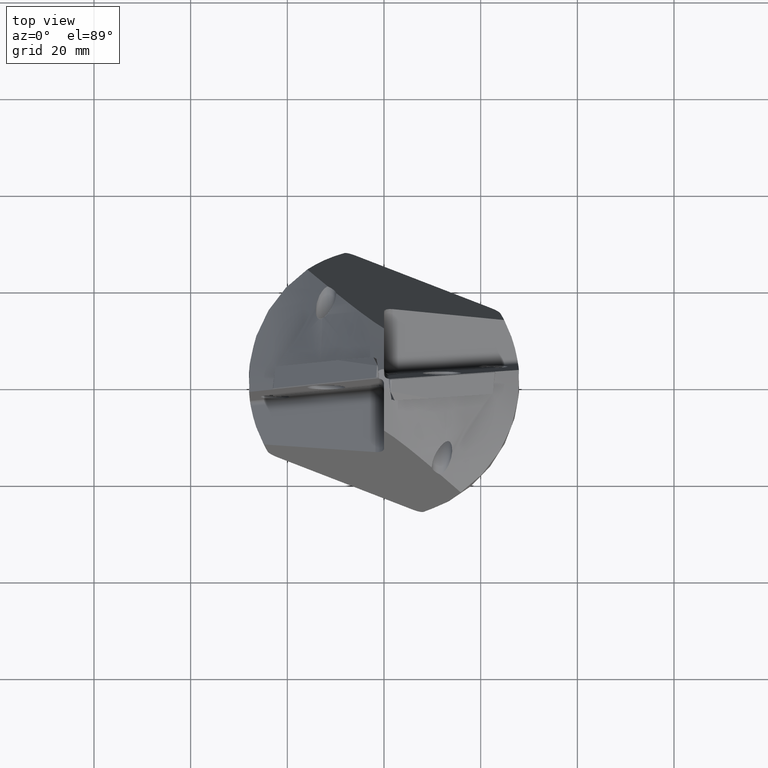
[diagram: clean part render]
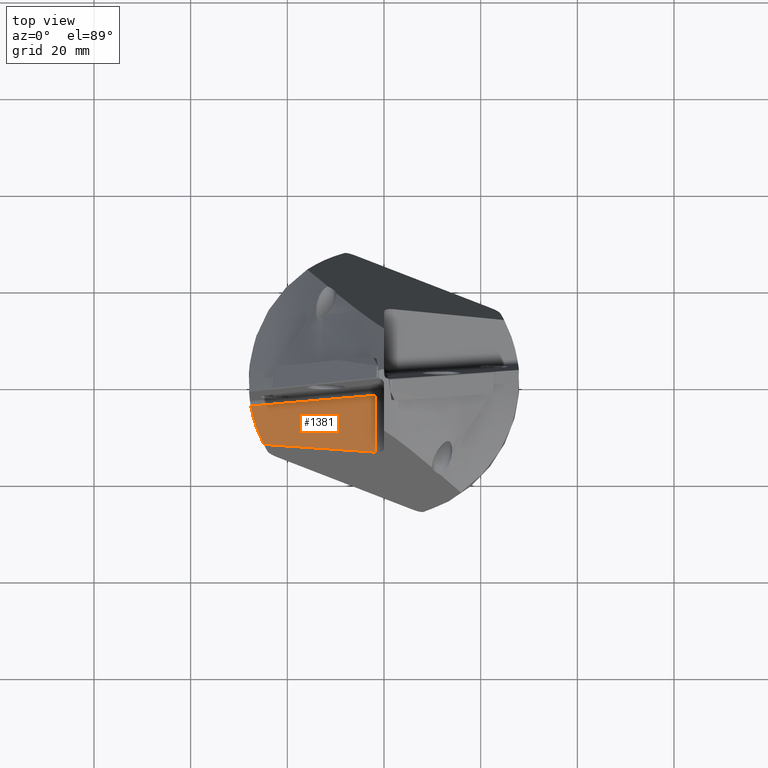
[diagram: same view with one face highlighted and labeled with its STEP entity id]
A machine part, top view. The second image highlights one B-rep face of the part: STEP entity #1381.
In plain terms, the highlighted planar face has unit normal (0.6362, -0.0672, -0.7686).
Its self-contained STEP definition (entity closure, byte-faithful):
#197=FACE_OUTER_BOUND('',#276,.T.);
#276=EDGE_LOOP('',(#1118,#1119,#1120,#1121));
#338=ELLIPSE('',#1532,36.4313253199694,27.9999999999999);
#404=LINE('',#2310,#496);
#416=LINE('',#2413,#508);
#417=LINE('',#2414,#509);
#496=VECTOR('',#1788,10.);
#508=VECTOR('',#1876,10.);
#509=VECTOR('',#1877,10.);
#601=VERTEX_POINT('',#2276);
#605=VERTEX_POINT('',#2295);
#632=VERTEX_POINT('',#2410);
#633=VERTEX_POINT('',#2412);
#768=EDGE_CURVE('',#605,#601,#404,.T.);
#808=EDGE_CURVE('',#632,#605,#338,.T.);
#809=EDGE_CURVE('',#632,#633,#416,.T.);
#810=EDGE_CURVE('',#601,#633,#417,.T.);
#1118=ORIENTED_EDGE('',*,*,#768,.F.);
#1119=ORIENTED_EDGE('',*,*,#808,.F.);
#1120=ORIENTED_EDGE('',*,*,#809,.T.);
#1121=ORIENTED_EDGE('',*,*,#810,.F.);
#1320=PLANE('',#1531);
#1381=ADVANCED_FACE('',(#197),#1320,.F.);
#1531=AXIS2_PLACEMENT_3D('',#2409,#1872,#1873);
#1532=AXIS2_PLACEMENT_3D('',#2411,#1874,#1875);
#1788=DIRECTION('',(0.771505159484471,0.0554504938141471,0.633802044509647));
#1872=DIRECTION('center_axis',(0.636223065354316,-0.0672411052085196,-0.768569349428856));
#1873=DIRECTION('ref_axis',(0.771505159484471,0.0554504938141471,0.633802044509647));
#1874=DIRECTION('center_axis',(0.636223065354316,-0.0672411052085196,-0.768569349428856));
#1875=DIRECTION('ref_axis',(-0.764312540624706,0.0807786179957427,-0.639766484835291));
#1876=DIRECTION('',(0.765988272327994,-0.0638671655740963,0.639674098129279));
#1877=DIRECTION('',(-1.26969508518063E-16,-0.996194698091746,0.0871557427476581));
#2276=CARTESIAN_POINT('',(-1.81888467322644,-3.02753179186416,-23.1311334836103));
#2295=CARTESIAN_POINT('',(-27.5717343004978,-4.87846980750606,-44.2874518115665));
#2310=CARTESIAN_POINT('',(-18.3149746564826,-4.2131574799482,-36.6828971099083));
#2409=CARTESIAN_POINT('Origin',(-28.,-3.91305590748043,-44.7264336861306));
#2410=CARTESIAN_POINT('',(-24.8682413444721,-12.8674229134307,-41.3505527358679));
#2411=CARTESIAN_POINT('Origin',(0.,0.,-21.890332247787));
#2412=CARTESIAN_POINT('',(-1.81888467322644,-14.7892500902683,-22.1021164689145));
#2413=CARTESIAN_POINT('',(-32.2427688169544,-12.2525438295978,-47.5089945560708));
#2414=CARTESIAN_POINT('',(-1.81888467322644,-2.03133709377241,-23.2182892263579));